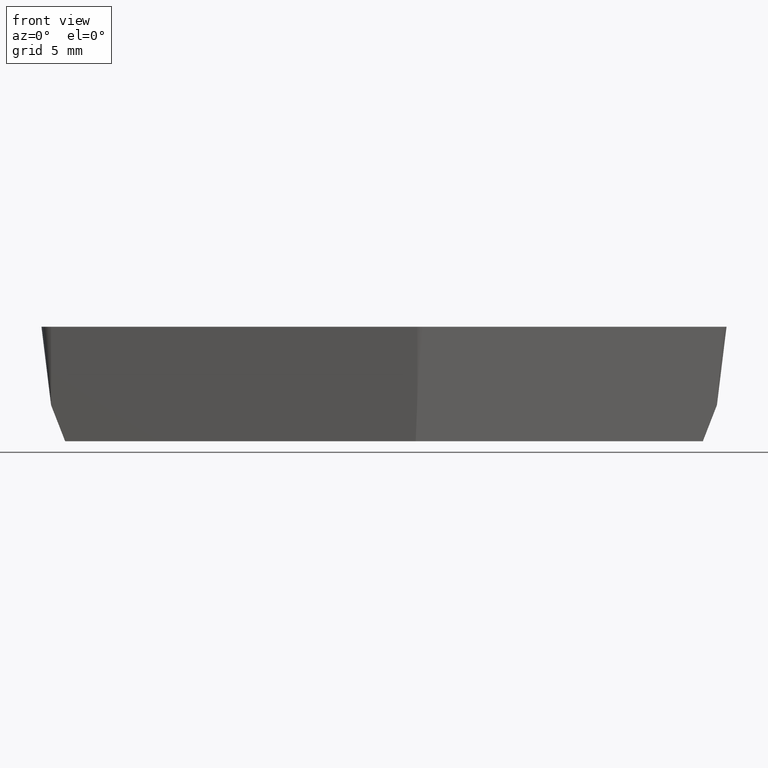
[diagram: clean part render]
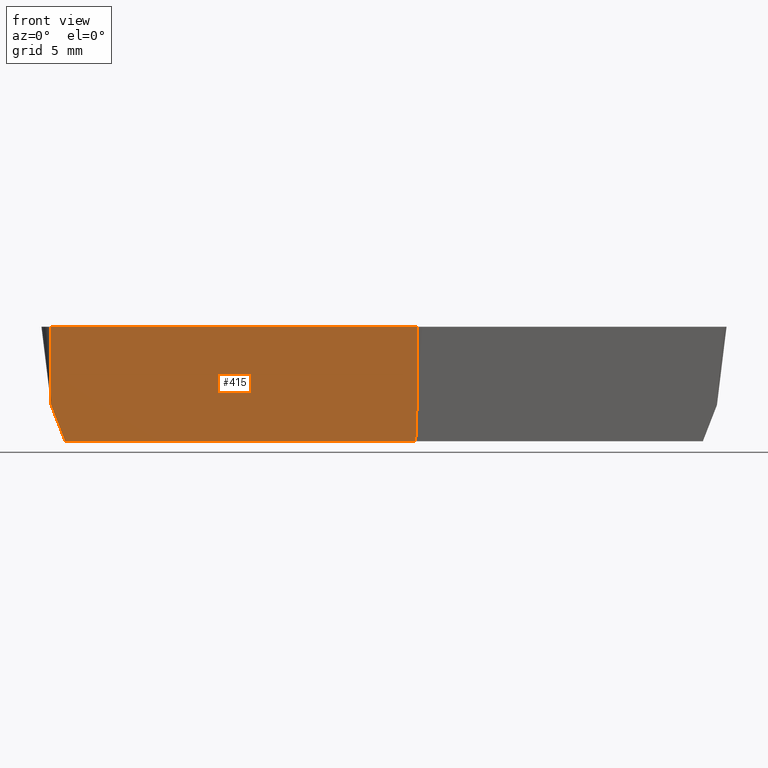
[diagram: same view with one face highlighted and labeled with its STEP entity id]
A machine part, front view. The second image highlights one B-rep face of the part: STEP entity #415.
In plain terms, the highlighted face is a freeform B-spline surface patch.
Its self-contained STEP definition (entity closure, byte-faithful):
#5 = LINE ( 'NONE', #432, #124 ) ;
#31 = DIRECTION ( 'NONE',  ( 6.365331826332493700E-018, -0.1218693434051477400, 0.9925461516413219800 ) ) ;
#51 = VERTEX_POINT ( 'NONE', #331 ) ;
#58 = VERTEX_POINT ( 'NONE', #394 ) ;
#77 = DIRECTION ( 'NONE',  ( -6.365331826332493700E-018, 0.1218693434051477400, -0.9925461516413219800 ) ) ;
#84 = CARTESIAN_POINT ( 'NONE',  ( 1.375490966484557400, -4.362500000000007800, -3.257738571189773100 ) ) ;
#91 = CARTESIAN_POINT ( 'NONE',  ( -13.83608232530964500, -4.762500000000002000, 0.0000000000000000000 ) ) ;
#93 = VECTOR ( 'NONE', #152, 1000.000000000000000 ) ;
#95 = CARTESIAN_POINT ( 'NONE',  ( -8.765557894711571800, -4.762500000000002000, 0.0000000000000000000 ) ) ;
#107 = LINE ( 'NONE', #385, #93 ) ;
#120 = FACE_OUTER_BOUND ( 'NONE', #251, .T. ) ;
#124 = VECTOR ( 'NONE', #31, 1000.000000000000000 ) ;
#143 = CARTESIAN_POINT ( 'NONE',  ( -13.25106736044506700, -4.178045490102174000, -4.760000000000000700 ) ) ;
#152 = DIRECTION ( 'NONE',  ( 1.000000000000000000, 5.223078789528969500E-017, -0.0000000000000000000 ) ) ;
#169 = VECTOR ( 'NONE', #77, 1000.000000000000000 ) ;
#178 = CARTESIAN_POINT ( 'NONE',  ( -13.25106736044506700, -4.178045490102174000, -4.760000000000000700 ) ) ;
#179 = CARTESIAN_POINT ( 'NONE',  ( 1.356104871959926900, -4.301015163367396500, -3.758492380793182700 ) ) ;
#185 = ORIENTED_EDGE ( 'NONE', *, *, #427, .F. ) ;
#188 = CARTESIAN_POINT ( 'NONE',  ( 1.375490966484556300, -4.762500000000001100, 0.0000000000000000000 ) ) ;
#190 = ORIENTED_EDGE ( 'NONE', *, *, #383, .T. ) ;
#200 = CARTESIAN_POINT ( 'NONE',  ( 1.375490966484557400, -4.362500000000007800, -3.257738571189773100 ) ) ;
#208 = CARTESIAN_POINT ( 'NONE',  ( -8.394934012659817300, -4.178045490102174900, -4.760000000000000700 ) ) ;
#210 = CARTESIAN_POINT ( 'NONE',  ( -13.25106736044506700, -4.178045490102174000, -4.760000000000000700 ) ) ;
#211 = LINE ( 'NONE', #306, #169 ) ;
#218 = CARTESIAN_POINT ( 'NONE',  ( 1.336718777435298700, -4.239530326734785200, -4.259246190396591900 ) ) ;
#233 = CARTESIAN_POINT ( 'NONE',  ( 1.375490966484556700, -4.061154588122608500, -5.711999999999998900 ) ) ;
#238 = CARTESIAN_POINT ( 'NONE',  ( 1.317332682910668200, -4.178045490102174000, -4.760000000000001600 ) ) ;
#247 = CARTESIAN_POINT ( 'NONE',  ( -3.538800664874575100, -4.178045490102174000, -4.760000000000000700 ) ) ;
#251 = EDGE_LOOP ( 'NONE', ( #452, #458, #260, #185, #190, #266 ) ) ;
#252 = CARTESIAN_POINT ( 'NONE',  ( 1.317332682910668200, -4.178045490102174000, -4.760000000000001600 ) ) ;
#260 = ORIENTED_EDGE ( 'NONE', *, *, #410, .T. ) ;
#263 = CARTESIAN_POINT ( 'NONE',  ( -8.765557894711571800, -4.061154588122609400, -5.711999999999998900 ) ) ;
#266 = ORIENTED_EDGE ( 'NONE', *, *, #375, .F. ) ;
#267 = CARTESIAN_POINT ( 'NONE',  ( -13.83608232530964500, -4.061154588122609400, -5.711999999999998900 ) ) ;
#268 = VERTEX_POINT ( 'NONE', #143 ) ;
#270 = CARTESIAN_POINT ( 'NONE',  ( 1.375490966484556700, -4.762500000000001100, 0.0000000000000000000 ) ) ;
#278 = CARTESIAN_POINT ( 'NONE',  ( -3.695033464113510300, -4.762500000000001100, 0.0000000000000000000 ) ) ;
#305 = B_SPLINE_CURVE_WITH_KNOTS ( 'NONE', 3,
 ( #178, #460, #455, #447 ),
 .UNSPECIFIED., .F., .F.,
 ( 4, 4 ),
 ( 0.0000000000000000000, 0.001622669213311180100 ),
 .UNSPECIFIED. ) ;
#306 = CARTESIAN_POINT ( 'NONE',  ( -13.83608232530964500, -4.762500000000002000, 0.0000000000000000000 ) ) ;
#331 = CARTESIAN_POINT ( 'NONE',  ( 1.317332682910668200, -4.178045490102174000, -4.760000000000001600 ) ) ;
#347 = VERTEX_POINT ( 'NONE', #91 ) ;
#348 = B_SPLINE_SURFACE_WITH_KNOTS ( 'NONE', 1, 3, ( 
 ( #399, #95, #278, #270 ),
 ( #267, #263, #444, #233 ) ),
 .UNSPECIFIED., .F., .F., .F.,
 ( 2, 2 ),
 ( 4, 4 ),
 ( 0.0000000000000000000, 1.000000000000000000 ),
 ( -0.01533769280734579100, -0.0001261195155515895400 ),
 .UNSPECIFIED. ) ;
#361 = EDGE_CURVE ( 'NONE', #268, #51, #465, .T. ) ;
#369 = VERTEX_POINT ( 'NONE', #200 ) ;
#375 = EDGE_CURVE ( 'NONE', #268, #58, #305, .T. ) ;
#380 = EDGE_CURVE ( 'NONE', #51, #369, #453, .T. ) ;
#383 = EDGE_CURVE ( 'NONE', #347, #58, #211, .T. ) ;
#385 = CARTESIAN_POINT ( 'NONE',  ( 1.501610482036145800, -4.762500000000001100, 0.0000000000000000000 ) ) ;
#394 = CARTESIAN_POINT ( 'NONE',  ( -13.83608232530964500, -4.362500000000001600, -3.257738571189830800 ) ) ;
#399 = CARTESIAN_POINT ( 'NONE',  ( -13.83608232530964500, -4.762500000000002000, 0.0000000000000000000 ) ) ;
#410 = EDGE_CURVE ( 'NONE', #369, #456, #5, .T. ) ;
#415 = ADVANCED_FACE ( 'NONE', ( #120 ), #348, .T. ) ;
#427 = EDGE_CURVE ( 'NONE', #347, #456, #107, .T. ) ;
#432 = CARTESIAN_POINT ( 'NONE',  ( 1.375490966484556700, -4.762500000000001100, 0.0000000000000000000 ) ) ;
#444 = CARTESIAN_POINT ( 'NONE',  ( -3.695033464113510300, -4.061154588122608500, -5.711999999999998900 ) ) ;
#447 = CARTESIAN_POINT ( 'NONE',  ( -13.83608232530964500, -4.362500000000001600, -3.257738571189830800 ) ) ;
#452 = ORIENTED_EDGE ( 'NONE', *, *, #361, .T. ) ;
#453 = B_SPLINE_CURVE_WITH_KNOTS ( 'NONE', 3,
 ( #238, #218, #179, #84 ),
 .UNSPECIFIED., .F., .F.,
 ( 4, 4 ),
 ( 0.0000000000000000000, 0.001514660111266174600 ),
 .UNSPECIFIED. ) ;
#455 = CARTESIAN_POINT ( 'NONE',  ( -13.64107733702144300, -4.301015163367393000, -3.758492380793217800 ) ) ;
#456 = VERTEX_POINT ( 'NONE', #188 ) ;
#458 = ORIENTED_EDGE ( 'NONE', *, *, #380, .T. ) ;
#460 = CARTESIAN_POINT ( 'NONE',  ( -13.44607234873325300, -4.239530326734783500, -4.259246190396607900 ) ) ;
#465 = B_SPLINE_CURVE_WITH_KNOTS ( 'NONE', 3,
 ( #210, #208, #247, #252 ),
 .UNSPECIFIED., .F., .F.,
 ( 4, 4 ),
 ( 0.0000000000000000000, 0.01456840004335573300 ),
 .UNSPECIFIED. ) ;